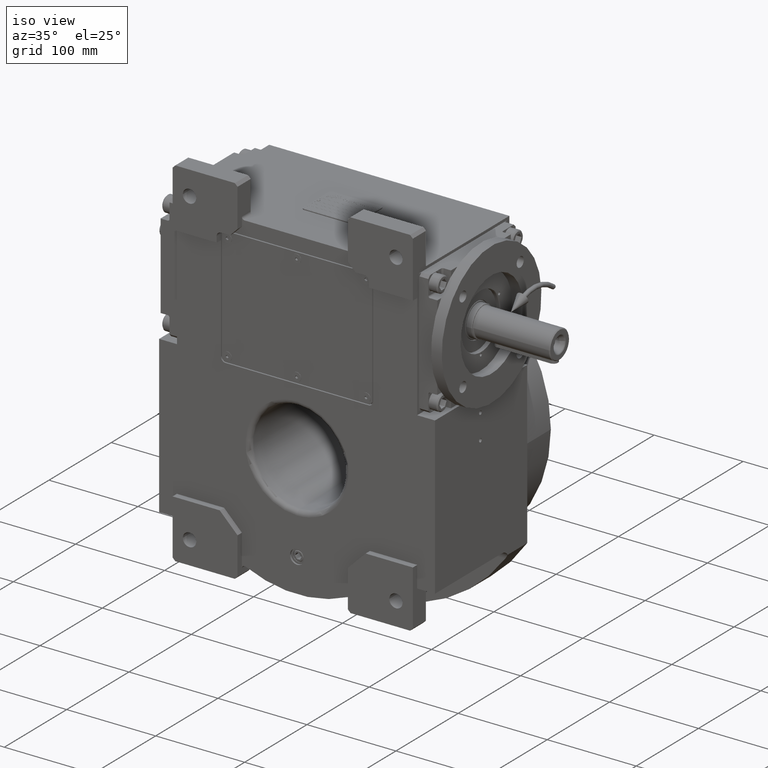
[diagram: clean part render]
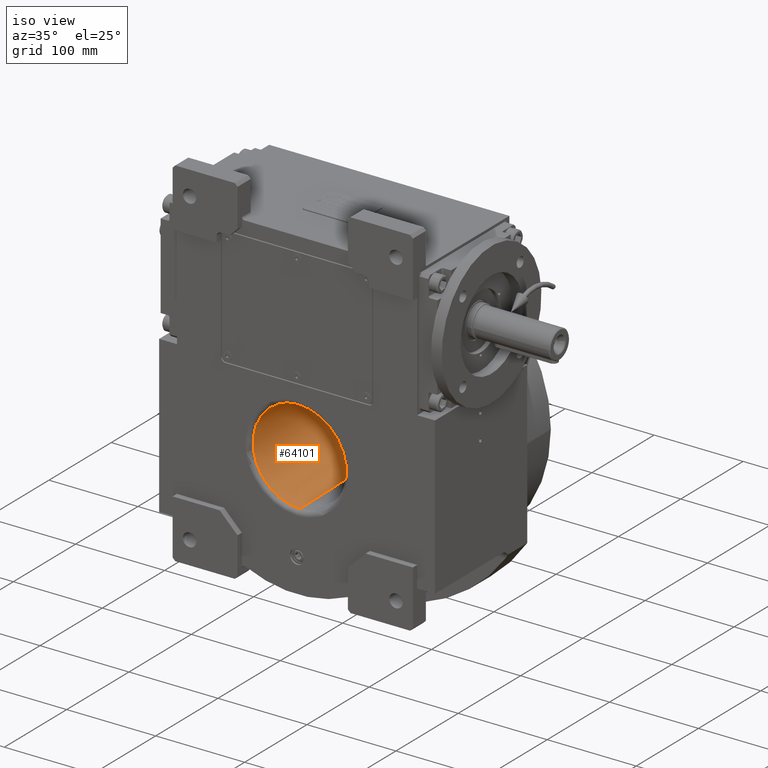
[diagram: same view with one face highlighted and labeled with its STEP entity id]
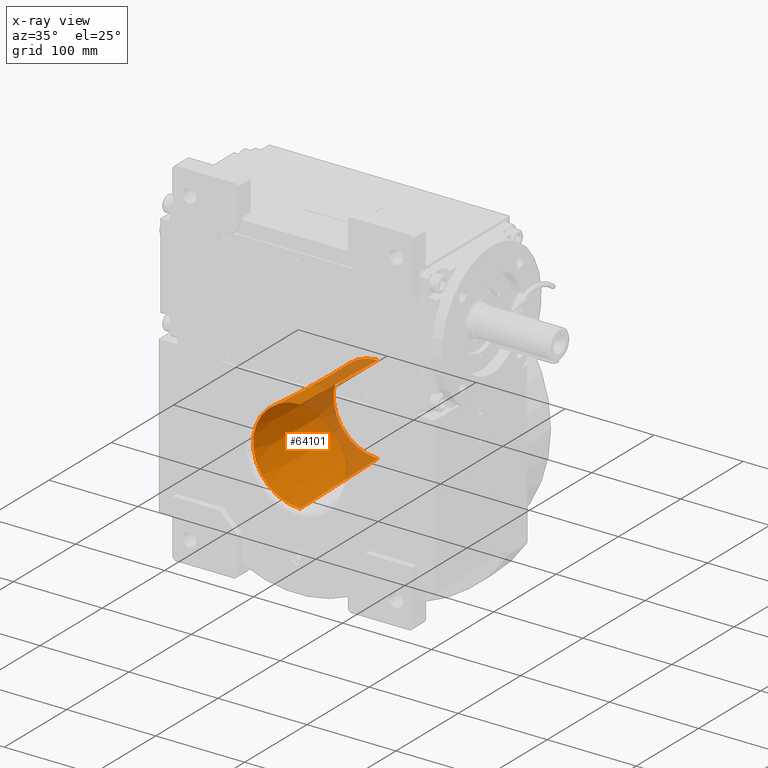
[diagram: x-ray of the same camera — body ghosted, the highlighted face saturated]
A machine part, iso view. The second image highlights one B-rep face of the part: STEP entity #64101.
The next image is the same camera in x-ray: the body ghosted, the highlighted face saturated — about 23% of this face is hidden behind the body in this view.
In plain terms, the highlighted conical surface has half-angle 1.292 deg.
Its self-contained STEP definition (entity closure, byte-faithful):
#6 = CARTESIAN_POINT ( 'NONE',  ( 0.000000000000000000, 2232.333333333314840, -3.962844522719785252E-13 ) ) ;
#422 = DIRECTION ( 'NONE',  ( 0.9882587347805640299, -2.055886669902873894E-08, -0.1527896368538074756 ) ) ;
#3024 = EDGE_CURVE ( 'NONE', #62672, #68787, #49444, .T. ) ;
#4272 = EDGE_CURVE ( 'NONE', #30008, #62672, #54061, .T. ) ;
#6376 = CARTESIAN_POINT ( 'NONE',  ( -1.295425538949331941E-14, -68.11275327462179519, 52.88976135205919604 ) ) ;
#6709 = DIRECTION ( 'NONE',  ( 0.000000000000000000, 0.000000000000000000, 1.000000000000000000 ) ) ;
#7469 = DIRECTION ( 'NONE',  ( 2.310691404686464099E-08, 0.9999999999999997780, 1.490116125507999888E-08 ) ) ;
#8799 = CONICAL_SURFACE ( 'NONE', #68700, 1.000000000000000000, 0.02255256665030591981 ) ;
#9231 = ORIENTED_EDGE ( 'NONE', *, *, #4272, .T. ) ;
#11678 = LINE ( 'NONE', #6376, #69388 ) ;
#16814 = AXIS2_PLACEMENT_3D ( 'NONE', #39735, #7469, #422 ) ;
#24205 = ORIENTED_EDGE ( 'NONE', *, *, #52738, .F. ) ;
#28354 = CARTESIAN_POINT ( 'NONE',  ( -5.647091595521470526E-12, 57.06765196477320501, 50.06614318876450653 ) ) ;
#28656 = VECTOR ( 'NONE', #59722, 1000.000000000000114 ) ;
#29286 = CIRCLE ( 'NONE', #16814, 52.88976140256119152 ) ;
#29777 = EDGE_LOOP ( 'NONE', ( #9231, #36091, #63410, #24205 ) ) ;
#30008 = VERTEX_POINT ( 'NONE', #60327 ) ;
#30420 = AXIS2_PLACEMENT_3D ( 'NONE', #33858, #65729, #66081 ) ;
#33172 = CARTESIAN_POINT ( 'NONE',  ( 6.477127694746659705E-15, -68.11275327462179519, -52.88976135205919604 ) ) ;
#33626 = FACE_OUTER_BOUND ( 'NONE', #29777, .T. ) ;
#33652 = DIRECTION ( 'NONE',  ( 5.523317474363207377E-18, 0.9997457016474147196, -0.02255065492437819882 ) ) ;
#33858 = CARTESIAN_POINT ( 'NONE',  ( 3.083076751974459965E-08, 57.06765196477320501, -2.539431900768300017E-15 ) ) ;
#36091 = ORIENTED_EDGE ( 'NONE', *, *, #3024, .T. ) ;
#36486 = CARTESIAN_POINT ( 'NONE',  ( 5.632922360699180090E-12, 57.06765196477320501, -50.06614318876450653 ) ) ;
#39735 = CARTESIAN_POINT ( 'NONE',  ( 5.180066373969149615E-08, -68.11275406274060629, 4.736386318413870025E-15 ) ) ;
#40996 = EDGE_CURVE ( 'NONE', #52953, #68787, #11678, .T. ) ;
#44601 = DIRECTION ( 'NONE',  ( 0.000000000000000000, -1.000000000000000000, 1.836909530733564901E-16 ) ) ;
#46059 = CARTESIAN_POINT ( 'NONE',  ( -3.366447261396295104E-11, -68.11275327462200835, 52.88976135205919604 ) ) ;
#49444 = CIRCLE ( 'NONE', #30420, 50.06614321695211345 ) ;
#52738 = EDGE_CURVE ( 'NONE', #30008, #52953, #29286, .T. ) ;
#52953 = VERTEX_POINT ( 'NONE', #46059 ) ;
#54061 = LINE ( 'NONE', #33172, #28656 ) ;
#59722 = DIRECTION ( 'NONE',  ( -2.761658737181604074E-18, 0.9997457016474147196, 0.02255065492437784494 ) ) ;
#60327 = CARTESIAN_POINT ( 'NONE',  ( 3.366158563859759886E-11, -68.11275327462200835, -52.88976135205919604 ) ) ;
#62672 = VERTEX_POINT ( 'NONE', #36486 ) ;
#63410 = ORIENTED_EDGE ( 'NONE', *, *, #40996, .F. ) ;
#64101 = ADVANCED_FACE ( 'NONE', ( #33626 ), #8799, .F. ) ;
#65729 = DIRECTION ( 'NONE',  ( 1.997138262492154581E-08, 0.9999999999999997780, 6.123233971614108296E-17 ) ) ;
#66081 = DIRECTION ( 'NONE',  ( 0.9817544653963818924, -1.960699399857663348E-08, -0.1901530164742704643 ) ) ;
#68700 = AXIS2_PLACEMENT_3D ( 'NONE', #6, #44601, #6709 ) ;
#68787 = VERTEX_POINT ( 'NONE', #28354 ) ;
#69388 = VECTOR ( 'NONE', #33652, 1000.000000000000114 ) ;